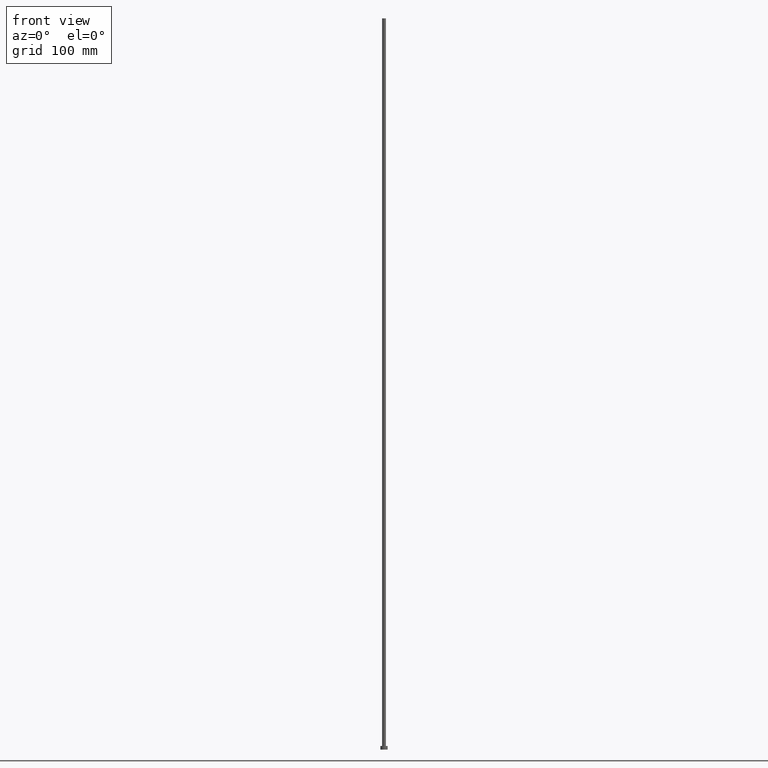
[diagram: clean part render]
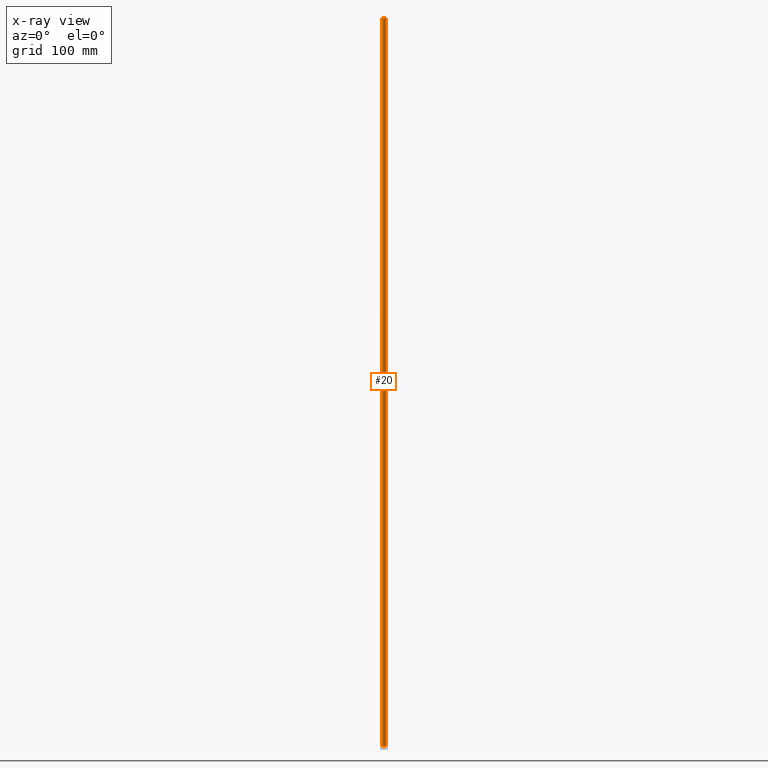
[diagram: x-ray — body ghosted, one internal face saturated and labeled with its STEP entity id]
A machine part, front view, then the same camera in x-ray: the body is ghosted and one INTERNAL B-rep face — a face not visible from any outside direction — is saturated and labeled: STEP entity #20.
In plain terms, the highlighted cylindrical surface (edge-blend (fillet) strip) has radius 2.5 mm, axis along (-0, -0, -1).
Its self-contained STEP definition (entity closure, byte-faithful):
#2 = CARTESIAN_POINT ( 'NONE',  ( 0.000000000000000000, 0.000000000000000000, 1000.000000000000000 ) ) ;
#20 = ADVANCED_FACE ( 'NONE', ( #153 ), #64, .T. ) ;
#23 = CIRCLE ( 'NONE', #120, 2.500000000000000000 ) ;
#26 = CARTESIAN_POINT ( 'NONE',  ( 0.000000000000000000, 0.000000000000000000, 1000.000000000000000 ) ) ;
#34 = VERTEX_POINT ( 'NONE', #195 ) ;
#38 = ORIENTED_EDGE ( 'NONE', *, *, #107, .T. ) ;
#41 = DIRECTION ( 'NONE',  ( -1.000000000000000000, 0.000000000000000000, 0.000000000000000000 ) ) ;
#54 = VERTEX_POINT ( 'NONE', #158 ) ;
#61 = LINE ( 'NONE', #177, #233 ) ;
#62 = ORIENTED_EDGE ( 'NONE', *, *, #221, .T. ) ;
#64 = CYLINDRICAL_SURFACE ( 'NONE', #100, 2.500000000000000000 ) ;
#65 = CARTESIAN_POINT ( 'NONE',  ( 0.000000000000000000, 0.000000000000000000, 5.000000000000000000 ) ) ;
#69 = VERTEX_POINT ( 'NONE', #137 ) ;
#79 = AXIS2_PLACEMENT_3D ( 'NONE', #2, #83, #142 ) ;
#83 = DIRECTION ( 'NONE',  ( 0.000000000000000000, 0.000000000000000000, 1.000000000000000000 ) ) ;
#87 = CARTESIAN_POINT ( 'NONE',  ( -2.500000000000000000, 0.000000000000000000, 1000.000000000000000 ) ) ;
#89 = EDGE_LOOP ( 'NONE', ( #237, #62, #38, #147 ) ) ;
#96 = VECTOR ( 'NONE', #168, 1000.000000000000000 ) ;
#100 = AXIS2_PLACEMENT_3D ( 'NONE', #26, #104, #41 ) ;
#104 = DIRECTION ( 'NONE',  ( -0.000000000000000000, -0.000000000000000000, -1.000000000000000000 ) ) ;
#107 = EDGE_CURVE ( 'NONE', #54, #34, #23, .T. ) ;
#117 = EDGE_CURVE ( 'NONE', #69, #118, #216, .T. ) ;
#118 = VERTEX_POINT ( 'NONE', #133 ) ;
#120 = AXIS2_PLACEMENT_3D ( 'NONE', #65, #128, #162 ) ;
#128 = DIRECTION ( 'NONE',  ( 0.000000000000000000, 0.000000000000000000, 1.000000000000000000 ) ) ;
#133 = CARTESIAN_POINT ( 'NONE',  ( -2.500000000000000000, 0.000000000000000000, 1000.000000000000000 ) ) ;
#137 = CARTESIAN_POINT ( 'NONE',  ( 2.500000000000000000, 3.061616997868382648E-16, 1000.000000000000000 ) ) ;
#142 = DIRECTION ( 'NONE',  ( 1.000000000000000000, 0.000000000000000000, 0.000000000000000000 ) ) ;
#147 = ORIENTED_EDGE ( 'NONE', *, *, #201, .F. ) ;
#152 = LINE ( 'NONE', #87, #96 ) ;
#153 = FACE_OUTER_BOUND ( 'NONE', #89, .T. ) ;
#158 = CARTESIAN_POINT ( 'NONE',  ( 2.500000000000000000, 3.061616997868382648E-16, 5.000000000000000000 ) ) ;
#162 = DIRECTION ( 'NONE',  ( 1.000000000000000000, 0.000000000000000000, 0.000000000000000000 ) ) ;
#168 = DIRECTION ( 'NONE',  ( -0.000000000000000000, -0.000000000000000000, -1.000000000000000000 ) ) ;
#177 = CARTESIAN_POINT ( 'NONE',  ( 2.500000000000000000, 3.061616997868382648E-16, 1000.000000000000000 ) ) ;
#195 = CARTESIAN_POINT ( 'NONE',  ( -2.500000000000000000, 0.000000000000000000, 5.000000000000000000 ) ) ;
#198 = DIRECTION ( 'NONE',  ( -0.000000000000000000, -0.000000000000000000, -1.000000000000000000 ) ) ;
#201 = EDGE_CURVE ( 'NONE', #118, #34, #152, .T. ) ;
#216 = CIRCLE ( 'NONE', #79, 2.500000000000000000 ) ;
#221 = EDGE_CURVE ( 'NONE', #69, #54, #61, .T. ) ;
#233 = VECTOR ( 'NONE', #198, 1000.000000000000000 ) ;
#237 = ORIENTED_EDGE ( 'NONE', *, *, #117, .F. ) ;